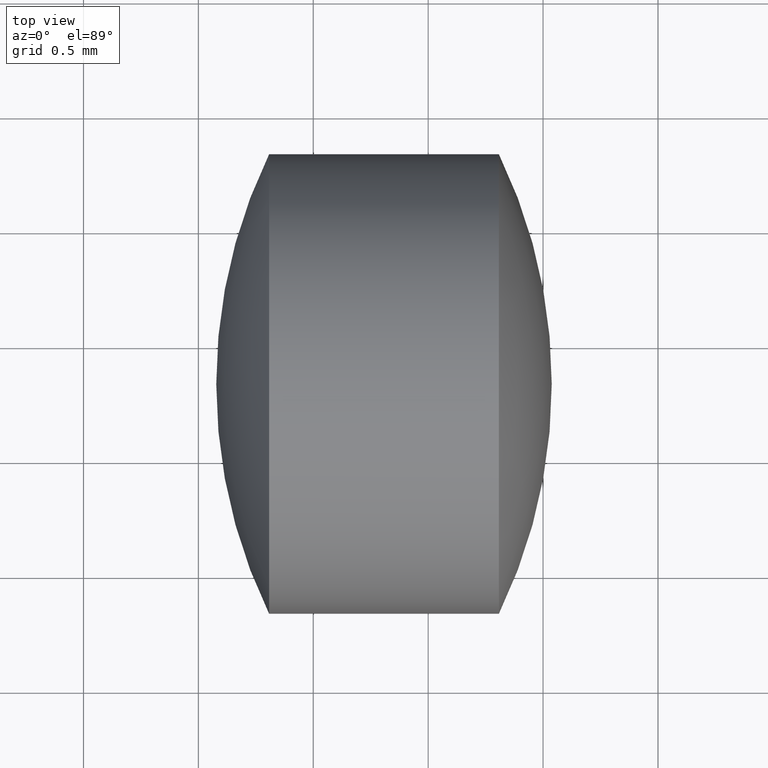
[diagram: clean part render]
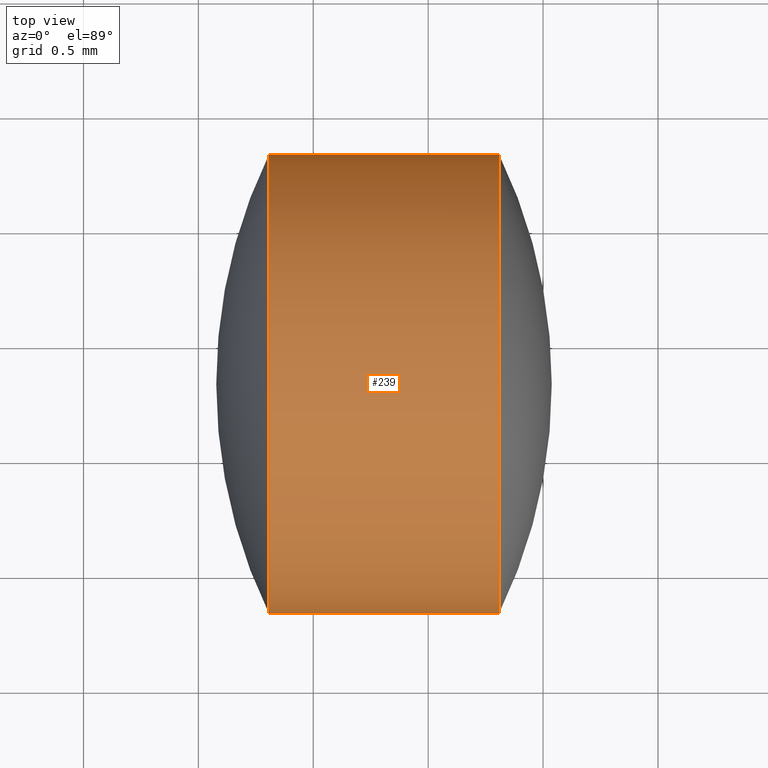
[diagram: same view with one face highlighted and labeled with its STEP entity id]
A machine part, top view. The second image highlights one B-rep face of the part: STEP entity #239.
In plain terms, the highlighted cylindrical surface (partial cylindrical patch) has radius 1 mm, axis along (-1, -0, -0).
Its self-contained STEP definition (entity closure, byte-faithful):
#5 = DIRECTION ( 'NONE',  ( 1.214306433183652800E-014, -1.000000000000000000, 0.0000000000000000000 ) ) ;
#7 = ORIENTED_EDGE ( 'NONE', *, *, #15, .F. ) ;
#9 = AXIS2_PLACEMENT_3D ( 'NONE', #215, #73, #285 ) ;
#10 = CARTESIAN_POINT ( 'NONE',  ( 7.307731793281250900, 2.828040395526708400, 0.0000000000000000000 ) ) ;
#15 = EDGE_CURVE ( 'NONE', #16, #241, #292, .T. ) ;
#16 = VERTEX_POINT ( 'NONE', #10 ) ;
#21 = ORIENTED_EDGE ( 'NONE', *, *, #208, .T. ) ;
#41 = VECTOR ( 'NONE', #221, 1000.000000000000000 ) ;
#47 = DIRECTION ( 'NONE',  ( -1.000000000000000000, -1.235158047084468200E-014, -0.0000000000000000000 ) ) ;
#51 = DIRECTION ( 'NONE',  ( 1.214306433183667600E-014, -1.000000000000000000, 0.0000000000000000000 ) ) ;
#73 = DIRECTION ( 'NONE',  ( -1.000000000000000000, -1.235158047084468200E-014, -0.0000000000000000000 ) ) ;
#84 = VERTEX_POINT ( 'NONE', #195 ) ;
#85 = EDGE_LOOP ( 'NONE', ( #21, #130, #299, #7 ) ) ;
#90 = CIRCLE ( 'NONE', #134, 1.000000000000080200 ) ;
#102 = AXIS2_PLACEMENT_3D ( 'NONE', #279, #47, #5 ) ;
#130 = ORIENTED_EDGE ( 'NONE', *, *, #273, .T. ) ;
#133 = CIRCLE ( 'NONE', #102, 1.000000000000092400 ) ;
#134 = AXIS2_PLACEMENT_3D ( 'NONE', #235, #256, #51 ) ;
#139 = VERTEX_POINT ( 'NONE', #151 ) ;
#151 = CARTESIAN_POINT ( 'NONE',  ( 7.307731793281226900, 4.828040395526868700, 1.224646799147445900E-016 ) ) ;
#153 = VECTOR ( 'NONE', #254, 1000.000000000000000 ) ;
#189 = CARTESIAN_POINT ( 'NONE',  ( 5.854222006274787800, 2.828040395526680900, 0.0000000000000000000 ) ) ;
#191 = CARTESIAN_POINT ( 'NONE',  ( 6.307731793281251800, 2.828040395526657300, -1.224646799147485600E-016 ) ) ;
#195 = CARTESIAN_POINT ( 'NONE',  ( 6.307731793281227800, 4.828040395526881100, 0.0000000000000000000 ) ) ;
#208 = EDGE_CURVE ( 'NONE', #16, #139, #90, .T. ) ;
#215 = CARTESIAN_POINT ( 'NONE',  ( 5.854222006274776300, 3.828040395526767000, 0.0000000000000000000 ) ) ;
#221 = DIRECTION ( 'NONE',  ( -1.000000000000000000, -1.235158047084468200E-014, -0.0000000000000000000 ) ) ;
#235 = CARTESIAN_POINT ( 'NONE',  ( 7.307731793281239300, 3.828040395526784800, 0.0000000000000000000 ) ) ;
#239 = ADVANCED_FACE ( 'NONE', ( #274 ), #271, .T. ) ;
#241 = VERTEX_POINT ( 'NONE', #191 ) ;
#254 = DIRECTION ( 'NONE',  ( -1.000000000000000000, -1.235158047084468200E-014, -0.0000000000000000000 ) ) ;
#256 = DIRECTION ( 'NONE',  ( -1.000000000000000000, -1.235158047084468200E-014, -0.0000000000000000000 ) ) ;
#262 = LINE ( 'NONE', #305, #153 ) ;
#271 = CYLINDRICAL_SURFACE ( 'NONE', #9, 1.000000000000086400 ) ;
#273 = EDGE_CURVE ( 'NONE', #139, #84, #262, .T. ) ;
#274 = FACE_OUTER_BOUND ( 'NONE', #85, .T. ) ;
#279 = CARTESIAN_POINT ( 'NONE',  ( 6.307731793281238500, 3.828040395526772800, 0.0000000000000000000 ) ) ;
#285 = DIRECTION ( 'NONE',  ( 1.214306433183660000E-014, -1.000000000000000000, 0.0000000000000000000 ) ) ;
#292 = LINE ( 'NONE', #189, #41 ) ;
#293 = EDGE_CURVE ( 'NONE', #241, #84, #133, .T. ) ;
#299 = ORIENTED_EDGE ( 'NONE', *, *, #293, .F. ) ;
#305 = CARTESIAN_POINT ( 'NONE',  ( 5.854222006274763900, 4.828040395526852700, 1.224646799147458700E-016 ) ) ;